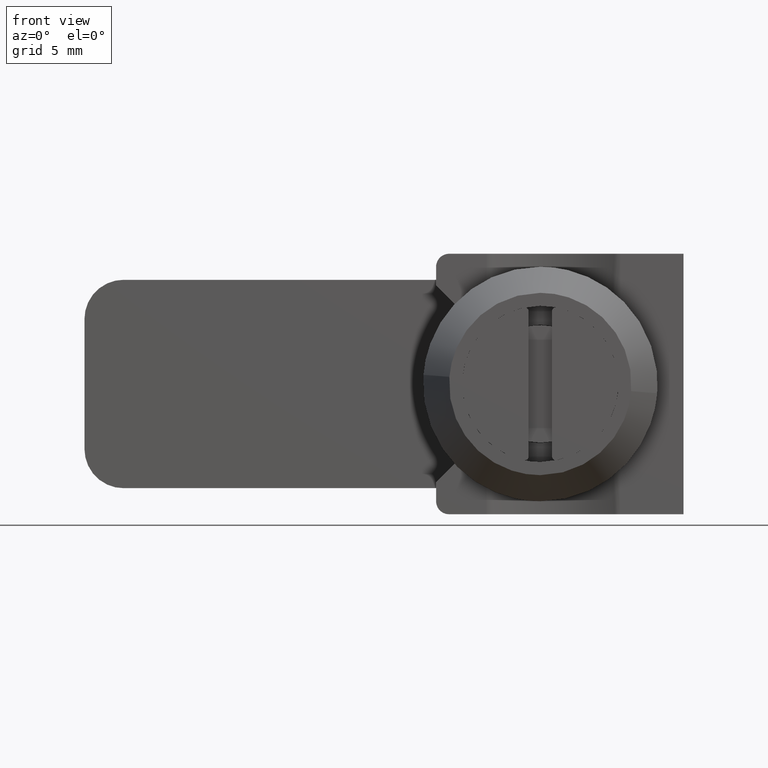
[diagram: clean part render]
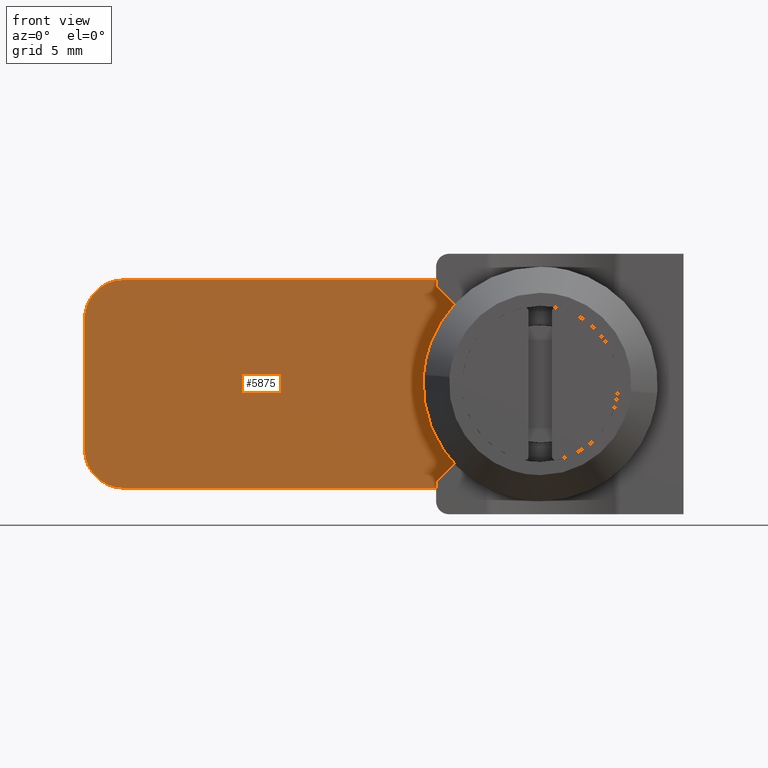
[diagram: same view with one face highlighted and labeled with its STEP entity id]
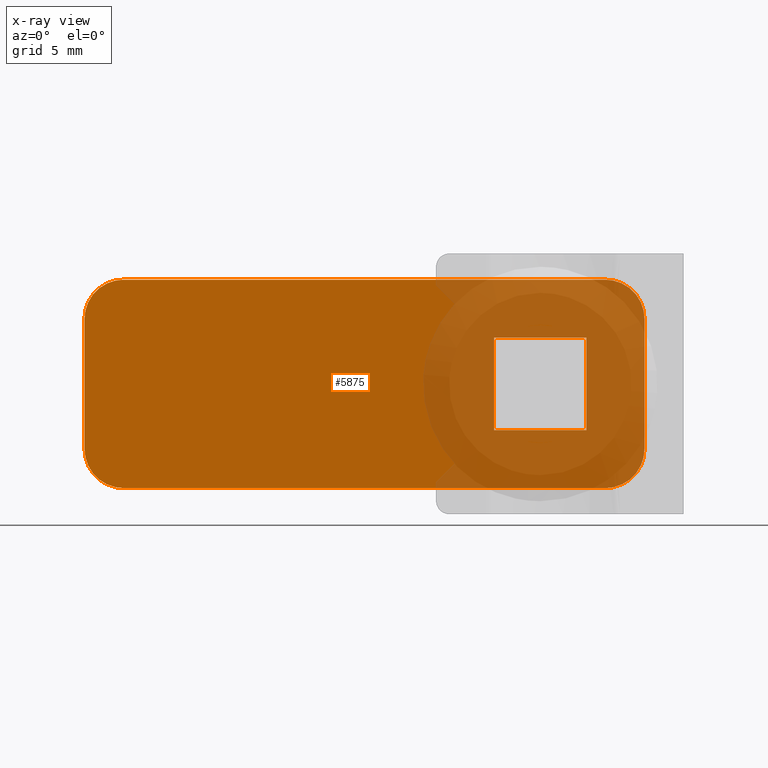
[diagram: x-ray of the same camera — body ghosted, the highlighted face saturated]
A machine part, front view. The second image highlights one B-rep face of the part: STEP entity #5875.
The next image is the same camera in x-ray: the body ghosted, the highlighted face saturated — about 32% of this face is hidden behind the body in this view.
In plain terms, the highlighted face is a freeform B-spline surface patch.
Its self-contained STEP definition (entity closure, byte-faithful):
#5750=CARTESIAN_POINT('',(-37.147849916657663,17.600000000000001,8.799199968988896));
#5751=CARTESIAN_POINT('',(10.147851070007530,17.600000000000001,8.799199968988896));
#5752=CARTESIAN_POINT('',(-37.147849916657663,17.600000000000001,-8.799200398142338));
#5753=CARTESIAN_POINT('',(10.147851070007530,17.600000000000001,-8.799200398142338));
#5754=B_SPLINE_SURFACE_WITH_KNOTS('',1,1,((#5750,#5752),(#5751,#5753)),.UNSPECIFIED.,.F.,.F.,.U.,(2,2),(2,2),(0.0,47.295700986665203),(0.0,17.598400367131230),.UNSPECIFIED.);
#5755=CARTESIAN_POINT('',(-32.0,17.600000000000001,-8.0));
#5756=VERTEX_POINT('',#5755);
#5757=CARTESIAN_POINT('',(5.0,17.600000000000001,-8.0));
#5758=VERTEX_POINT('',#5757);
#5759=CARTESIAN_POINT('',(-32.0,17.600000000000001,-8.0));
#5760=CARTESIAN_POINT('',(5.0,17.600000000000001,-8.0));
#5761=QUASI_UNIFORM_CURVE('',1,(#5759,#5760),.UNSPECIFIED.,.F.,.U.);
#5762=EDGE_CURVE('',#5756,#5758,#5761,.T.);
#5763=ORIENTED_EDGE('',*,*,#5762,.T.);
#5764=CARTESIAN_POINT('',(8.0,17.600000000000001,-5.0));
#5765=VERTEX_POINT('',#5764);
#5766=CARTESIAN_POINT('',(5.0,17.600000000000001,-8.0));
#5767=CARTESIAN_POINT('',(8.0,17.600000000000005,-8.0));
#5768=CARTESIAN_POINT('',(8.0,17.600000000000001,-5.0));
#5776=(BOUNDED_CURVE()B_SPLINE_CURVE(2,(#5766,#5767,#5768),.UNSPECIFIED.,.F.,.U.)CURVE()GEOMETRIC_REPRESENTATION_ITEM()QUASI_UNIFORM_CURVE()RATIONAL_B_SPLINE_CURVE((1.0,0.707106781186548,1.0))REPRESENTATION_ITEM(''));
#5777=EDGE_CURVE('',#5758,#5765,#5776,.T.);
#5778=ORIENTED_EDGE('',*,*,#5777,.T.);
#5779=CARTESIAN_POINT('',(8.0,17.600000000000001,5.0));
#5780=VERTEX_POINT('',#5779);
#5781=CARTESIAN_POINT('',(8.0,17.600000000000001,-5.0));
#5782=CARTESIAN_POINT('',(8.0,17.600000000000001,5.0));
#5783=QUASI_UNIFORM_CURVE('',1,(#5781,#5782),.UNSPECIFIED.,.F.,.U.);
#5784=EDGE_CURVE('',#5765,#5780,#5783,.T.);
#5785=ORIENTED_EDGE('',*,*,#5784,.T.);
#5786=CARTESIAN_POINT('',(5.0,17.600000000000001,8.0));
#5787=VERTEX_POINT('',#5786);
#5788=CARTESIAN_POINT('',(8.0,17.600000000000001,5.0));
#5789=CARTESIAN_POINT('',(8.0,17.600000000000005,8.0));
#5790=CARTESIAN_POINT('',(5.0,17.600000000000001,8.0));
#5798=(BOUNDED_CURVE()B_SPLINE_CURVE(2,(#5788,#5789,#5790),.UNSPECIFIED.,.F.,.U.)CURVE()GEOMETRIC_REPRESENTATION_ITEM()QUASI_UNIFORM_CURVE()RATIONAL_B_SPLINE_CURVE((1.0,0.707106781186548,1.0))REPRESENTATION_ITEM(''));
#5799=EDGE_CURVE('',#5780,#5787,#5798,.T.);
#5800=ORIENTED_EDGE('',*,*,#5799,.T.);
#5801=CARTESIAN_POINT('',(-32.0,17.600000000000001,8.0));
#5802=VERTEX_POINT('',#5801);
#5803=CARTESIAN_POINT('',(5.0,17.600000000000001,8.0));
#5804=CARTESIAN_POINT('',(-32.0,17.600000000000001,8.0));
#5805=QUASI_UNIFORM_CURVE('',1,(#5803,#5804),.UNSPECIFIED.,.F.,.U.);
#5806=EDGE_CURVE('',#5787,#5802,#5805,.T.);
#5807=ORIENTED_EDGE('',*,*,#5806,.T.);
#5808=CARTESIAN_POINT('',(-35.0,17.600000000000001,5.000001151917320));
#5809=VERTEX_POINT('',#5808);
#5810=CARTESIAN_POINT('',(-32.0,17.600000000000001,8.0));
#5811=CARTESIAN_POINT('',(-34.999998848082896,17.600000000000005,8.0));
#5812=CARTESIAN_POINT('',(-35.0,17.600000000000001,5.000001151917320));
#5820=(BOUNDED_CURVE()B_SPLINE_CURVE(2,(#5810,#5811,#5812),.UNSPECIFIED.,.F.,.U.)CURVE()GEOMETRIC_REPRESENTATION_ITEM()QUASI_UNIFORM_CURVE()RATIONAL_B_SPLINE_CURVE((1.0,0.707106916941292,1.0))REPRESENTATION_ITEM(''));
#5821=EDGE_CURVE('',#5802,#5809,#5820,.T.);
#5822=ORIENTED_EDGE('',*,*,#5821,.T.);
#5823=CARTESIAN_POINT('',(-35.0,17.600000000000001,-5.0));
#5824=VERTEX_POINT('',#5823);
#5825=CARTESIAN_POINT('',(-35.0,17.600000000000001,5.000001151917320));
#5826=CARTESIAN_POINT('',(-35.0,17.600000000000001,-5.0));
#5827=QUASI_UNIFORM_CURVE('',1,(#5825,#5826),.UNSPECIFIED.,.F.,.U.);
#5828=EDGE_CURVE('',#5809,#5824,#5827,.T.);
#5829=ORIENTED_EDGE('',*,*,#5828,.T.);
#5830=CARTESIAN_POINT('',(-35.0,17.600000000000001,-5.0));
#5831=CARTESIAN_POINT('',(-34.999999999999993,17.600000000000005,-8.0));
#5832=CARTESIAN_POINT('',(-32.0,17.600000000000001,-8.0));
#5840=(BOUNDED_CURVE()B_SPLINE_CURVE(2,(#5830,#5831,#5832),.UNSPECIFIED.,.F.,.U.)CURVE()GEOMETRIC_REPRESENTATION_ITEM()QUASI_UNIFORM_CURVE()RATIONAL_B_SPLINE_CURVE((1.0,0.707106781186548,1.0))REPRESENTATION_ITEM(''));
#5841=EDGE_CURVE('',#5824,#5756,#5840,.T.);
#5842=ORIENTED_EDGE('',*,*,#5841,.T.);
#5843=EDGE_LOOP('',(#5763,#5778,#5785,#5800,#5807,#5822,#5829,#5842));
#5844=FACE_OUTER_BOUND('',#5843,.T.);
#5845=CARTESIAN_POINT('',(3.550000000000000,17.600000000000001,3.550000000000000));
#5846=VERTEX_POINT('',#5845);
#5847=CARTESIAN_POINT('',(3.550000000000000,17.600000000000001,-3.550000000000000));
#5848=VERTEX_POINT('',#5847);
#5849=CARTESIAN_POINT('',(3.550000000000000,17.600000000000001,3.550000000000000));
#5850=CARTESIAN_POINT('',(3.550000000000000,17.600000000000001,-3.550000000000000));
#5851=QUASI_UNIFORM_CURVE('',1,(#5849,#5850),.UNSPECIFIED.,.F.,.U.);
#5852=EDGE_CURVE('',#5846,#5848,#5851,.T.);
#5853=ORIENTED_EDGE('',*,*,#5852,.T.);
#5854=CARTESIAN_POINT('',(-3.550000000000000,17.600000000000001,-3.550000000000000));
#5855=VERTEX_POINT('',#5854);
#5856=CARTESIAN_POINT('',(3.550000000000000,17.600000000000001,-3.550000000000000));
#5857=CARTESIAN_POINT('',(-3.550000000000000,17.600000000000001,-3.550000000000000));
#5858=QUASI_UNIFORM_CURVE('',1,(#5856,#5857),.UNSPECIFIED.,.F.,.U.);
#5859=EDGE_CURVE('',#5848,#5855,#5858,.T.);
#5860=ORIENTED_EDGE('',*,*,#5859,.T.);
#5861=CARTESIAN_POINT('',(-3.550000000000000,17.600000000000001,3.550000000000000));
#5862=VERTEX_POINT('',#5861);
#5863=CARTESIAN_POINT('',(-3.550000000000000,17.600000000000001,-3.550000000000000));
#5864=CARTESIAN_POINT('',(-3.550000000000000,17.600000000000001,3.550000000000000));
#5865=QUASI_UNIFORM_CURVE('',1,(#5863,#5864),.UNSPECIFIED.,.F.,.U.);
#5866=EDGE_CURVE('',#5855,#5862,#5865,.T.);
#5867=ORIENTED_EDGE('',*,*,#5866,.T.);
#5868=CARTESIAN_POINT('',(-3.550000000000000,17.600000000000001,3.550000000000000));
#5869=CARTESIAN_POINT('',(3.550000000000000,17.600000000000001,3.550000000000000));
#5870=QUASI_UNIFORM_CURVE('',1,(#5868,#5869),.UNSPECIFIED.,.F.,.U.);
#5871=EDGE_CURVE('',#5862,#5846,#5870,.T.);
#5872=ORIENTED_EDGE('',*,*,#5871,.T.);
#5873=EDGE_LOOP('',(#5853,#5860,#5867,#5872));
#5874=FACE_BOUND('',#5873,.T.);
#5875=ADVANCED_FACE('',(#5844,#5874),#5754,.F.);